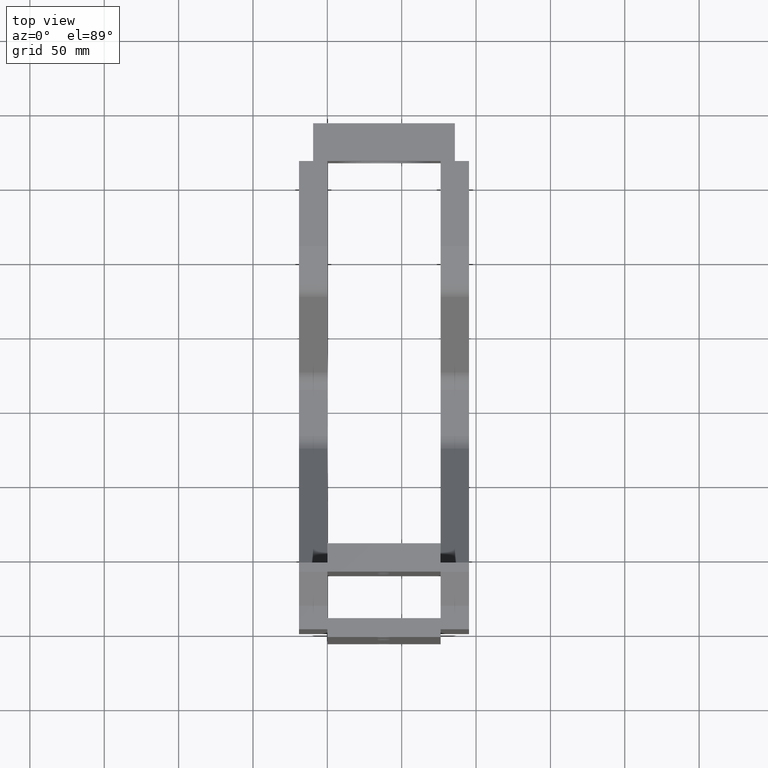
[diagram: clean part render]
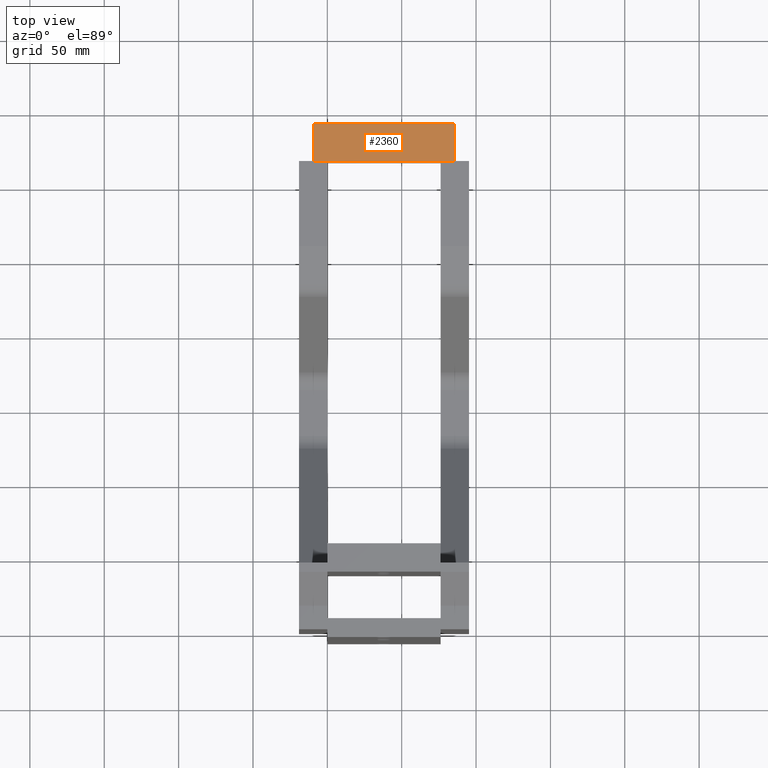
[diagram: same view with one face highlighted and labeled with its STEP entity id]
A machine part, top view. The second image highlights one B-rep face of the part: STEP entity #2360.
In plain terms, the highlighted planar face has unit normal (0, 0, -1).
Its self-contained STEP definition (entity closure, byte-faithful):
#322 = ORIENTED_EDGE ( 'NONE', *, *, #323, .T. ) ;
#323 = EDGE_CURVE ( 'NONE', #2349, #324, #1111, .T. ) ;
#324 = VERTEX_POINT ( 'NONE', #1107 ) ;
#325 = ORIENTED_EDGE ( 'NONE', *, *, #2359, .T. ) ;
#1107 = CARTESIAN_POINT ( 'NONE',  ( 1.875000000000000900, 0.0000000000000000000, 1.750000000000000000 ) ) ;
#1108 = DIRECTION ( 'NONE',  ( 1.000000000000000000, 0.0000000000000000000, 0.0000000000000000000 ) ) ;
#1109 = VECTOR ( 'NONE', #1108, 39.37007874015748100 ) ;
#1110 = CARTESIAN_POINT ( 'NONE',  ( -1.874999999999999300, 0.0000000000000000000, 1.750000000000000000 ) ) ;
#1111 = LINE ( 'NONE', #1110, #1109 ) ;
#1591 = DIRECTION ( 'NONE',  ( 0.0000000000000000000, -1.000000000000000000, 0.0000000000000000000 ) ) ;
#1592 = VECTOR ( 'NONE', #1591, 39.37007874015748100 ) ;
#1593 = CARTESIAN_POINT ( 'NONE',  ( 1.875000000000000900, 0.9999999999999992200, 1.750000000000000000 ) ) ;
#1594 = LINE ( 'NONE', #1593, #1592 ) ;
#1609 = CARTESIAN_POINT ( 'NONE',  ( -1.874999999999999300, 0.0000000000000000000, 1.750000000000000000 ) ) ;
#1623 = CARTESIAN_POINT ( 'NONE',  ( -1.874999999999999300, 0.9999999999999992200, 1.750000000000000000 ) ) ;
#1638 = CARTESIAN_POINT ( 'NONE',  ( 1.875000000000000900, 0.9999999999999992200, 1.750000000000000000 ) ) ;
#1645 = DIRECTION ( 'NONE',  ( 1.000000000000000000, 0.0000000000000000000, 0.0000000000000000000 ) ) ;
#1646 = VECTOR ( 'NONE', #1645, 39.37007874015748100 ) ;
#1647 = CARTESIAN_POINT ( 'NONE',  ( -1.874999999999999300, 0.9999999999999992200, 1.750000000000000000 ) ) ;
#1648 = LINE ( 'NONE', #1647, #1646 ) ;
#1649 = DIRECTION ( 'NONE',  ( -1.000000000000000000, 0.0000000000000000000, 0.0000000000000000000 ) ) ;
#1650 = DIRECTION ( 'NONE',  ( 0.0000000000000000000, 0.0000000000000000000, -1.000000000000000000 ) ) ;
#1651 = CARTESIAN_POINT ( 'NONE',  ( -1.874999999999999300, 0.9999999999999992200, 1.750000000000000000 ) ) ;
#1652 = AXIS2_PLACEMENT_3D ( 'NONE', #1651, #1650, #1649 ) ;
#1653 = PLANE ( 'NONE',  #1652 ) ;
#1654 = FACE_OUTER_BOUND ( 'NONE', #2343, .T. ) ;
#1655 = DIRECTION ( 'NONE',  ( 0.0000000000000000000, -1.000000000000000000, 0.0000000000000000000 ) ) ;
#1656 = VECTOR ( 'NONE', #1655, 39.37007874015748100 ) ;
#1657 = CARTESIAN_POINT ( 'NONE',  ( -1.874999999999999300, 0.9999999999999992200, 1.750000000000000000 ) ) ;
#1658 = LINE ( 'NONE', #1657, #1656 ) ;
#2317 = EDGE_CURVE ( 'NONE', #2367, #324, #1594, .T. ) ;
#2342 = VERTEX_POINT ( 'NONE', #1623 ) ;
#2343 = EDGE_LOOP ( 'NONE', ( #322, #2345, #2368, #325 ) ) ;
#2345 = ORIENTED_EDGE ( 'NONE', *, *, #2317, .F. ) ;
#2349 = VERTEX_POINT ( 'NONE', #1609 ) ;
#2359 = EDGE_CURVE ( 'NONE', #2342, #2349, #1658, .T. ) ;
#2360 = ADVANCED_FACE ( 'NONE', ( #1654 ), #1653, .F. ) ;
#2362 = EDGE_CURVE ( 'NONE', #2342, #2367, #1648, .T. ) ;
#2367 = VERTEX_POINT ( 'NONE', #1638 ) ;
#2368 = ORIENTED_EDGE ( 'NONE', *, *, #2362, .F. ) ;